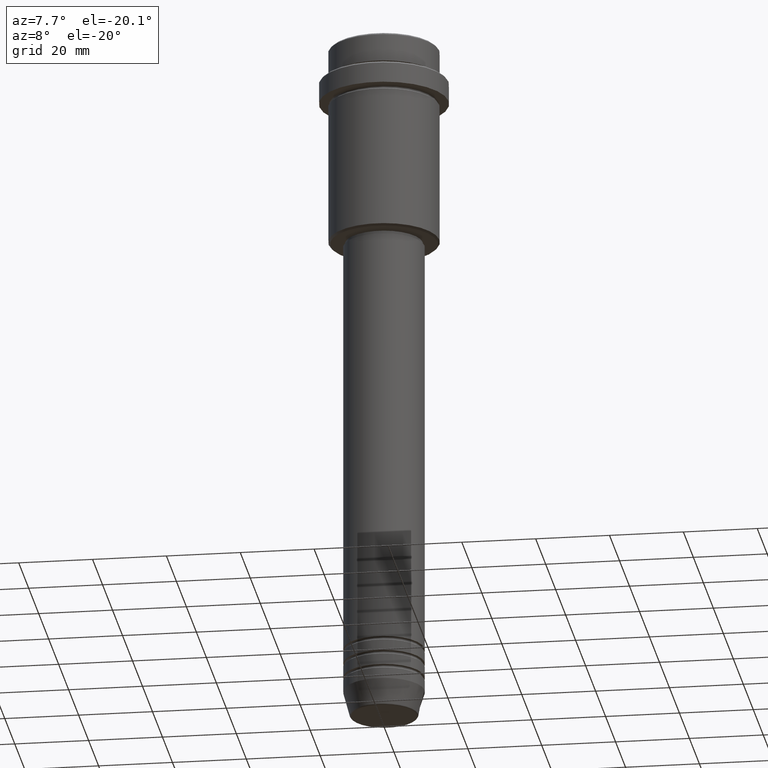
[diagram: clean part render]
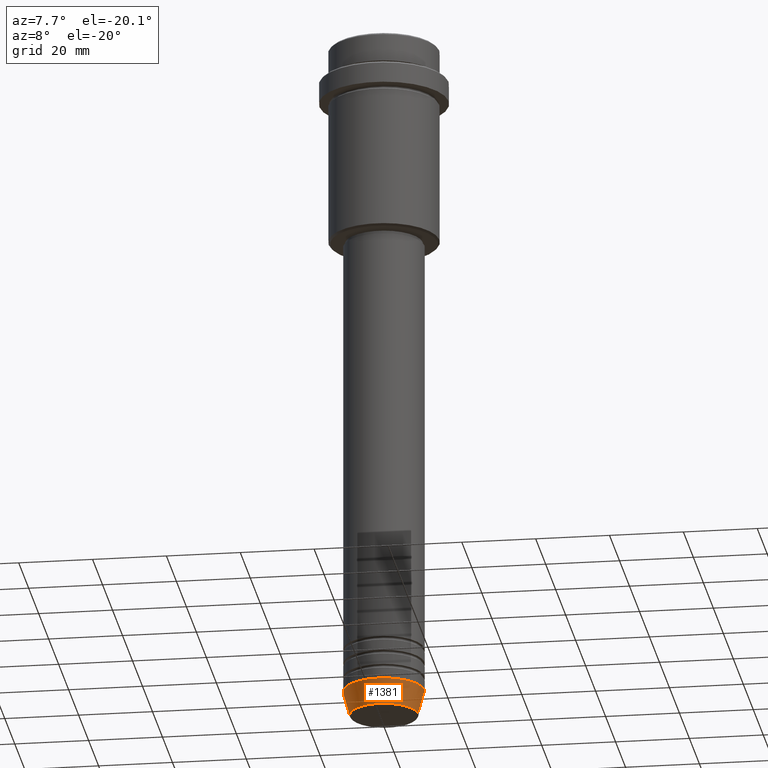
[diagram: same view with one face highlighted and labeled with its STEP entity id]
A machine part, auxiliary view. The second image highlights one B-rep face of the part: STEP entity #1381.
In plain terms, the highlighted conical surface has half-angle 15 deg.
Its self-contained STEP definition (entity closure, byte-faithful):
#60 = CARTESIAN_POINT ( 'NONE',  ( -11.00000000000000000, 1.347111479062088405E-15, -183.0000000000000000 ) ) ;
#66 = DIRECTION ( 'NONE',  ( -0.000000000000000000, -0.000000000000000000, 1.000000000000000000 ) ) ;
#89 = DIRECTION ( 'NONE',  ( -0.000000000000000000, -0.000000000000000000, 1.000000000000000000 ) ) ;
#106 = CARTESIAN_POINT ( 'NONE',  ( 0.000000000000000000, 0.000000000000000000, -189.6294095225512422 ) ) ;
#132 = VECTOR ( 'NONE', #1170, 1000.000000000000000 ) ;
#138 = CARTESIAN_POINT ( 'NONE',  ( -11.00000000000000000, 1.347111479062088405E-15, -183.0000000000000000 ) ) ;
#140 = CARTESIAN_POINT ( 'NONE',  ( 0.000000000000000000, 0.000000000000000000, -183.0000000000000000 ) ) ;
#158 = DIRECTION ( 'NONE',  ( -0.2588190451025213501, 3.169619151431772337E-17, 0.9659258262890680902 ) ) ;
#174 = EDGE_LOOP ( 'NONE', ( #246, #671, #1318, #452 ) ) ;
#204 = AXIS2_PLACEMENT_3D ( 'NONE', #140, #66, #538 ) ;
#246 = ORIENTED_EDGE ( 'NONE', *, *, #359, .F. ) ;
#262 = DIRECTION ( 'NONE',  ( -0.000000000000000000, -0.000000000000000000, 1.000000000000000000 ) ) ;
#349 = CONICAL_SURFACE ( 'NONE', #204, 11.00000000000000000, 0.2617993877991500740 ) ;
#359 = EDGE_CURVE ( 'NONE', #930, #1386, #606, .T. ) ;
#411 = VECTOR ( 'NONE', #158, 1000.000000000000000 ) ;
#427 = CARTESIAN_POINT ( 'NONE',  ( 11.00000000000000000, 0.000000000000000000, -183.0000000000000000 ) ) ;
#452 = ORIENTED_EDGE ( 'NONE', *, *, #1339, .F. ) ;
#476 = CARTESIAN_POINT ( 'NONE',  ( -9.223655072137189492, 1.238341722557647202E-15, -189.6294095225512422 ) ) ;
#538 = DIRECTION ( 'NONE',  ( 1.000000000000000000, 0.000000000000000000, 0.000000000000000000 ) ) ;
#566 = LINE ( 'NONE', #427, #132 ) ;
#606 = LINE ( 'NONE', #138, #411 ) ;
#612 = CARTESIAN_POINT ( 'NONE',  ( 0.000000000000000000, 0.000000000000000000, -183.0000000000000000 ) ) ;
#613 = EDGE_CURVE ( 'NONE', #1067, #915, #566, .T. ) ;
#671 = ORIENTED_EDGE ( 'NONE', *, *, #787, .T. ) ;
#690 = CARTESIAN_POINT ( 'NONE',  ( 11.00000000000000000, 0.000000000000000000, -183.0000000000000000 ) ) ;
#699 = DIRECTION ( 'NONE',  ( 1.000000000000000000, 0.000000000000000000, 0.000000000000000000 ) ) ;
#787 = EDGE_CURVE ( 'NONE', #930, #1067, #1121, .T. ) ;
#822 = CARTESIAN_POINT ( 'NONE',  ( 9.223655072137189492, 0.000000000000000000, -189.6294095225512422 ) ) ;
#915 = VERTEX_POINT ( 'NONE', #690 ) ;
#930 = VERTEX_POINT ( 'NONE', #476 ) ;
#952 = CIRCLE ( 'NONE', #1178, 11.00000000000000000 ) ;
#1067 = VERTEX_POINT ( 'NONE', #822 ) ;
#1108 = FACE_OUTER_BOUND ( 'NONE', #174, .T. ) ;
#1121 = CIRCLE ( 'NONE', #1148, 9.223655072137189492 ) ;
#1148 = AXIS2_PLACEMENT_3D ( 'NONE', #106, #89, #1184 ) ;
#1170 = DIRECTION ( 'NONE',  ( 0.2588190451025213501, 0.000000000000000000, 0.9659258262890680902 ) ) ;
#1178 = AXIS2_PLACEMENT_3D ( 'NONE', #612, #262, #699 ) ;
#1184 = DIRECTION ( 'NONE',  ( 1.000000000000000000, 0.000000000000000000, 0.000000000000000000 ) ) ;
#1318 = ORIENTED_EDGE ( 'NONE', *, *, #613, .T. ) ;
#1339 = EDGE_CURVE ( 'NONE', #1386, #915, #952, .T. ) ;
#1381 = ADVANCED_FACE ( 'NONE', ( #1108 ), #349, .T. ) ;
#1386 = VERTEX_POINT ( 'NONE', #60 ) ;